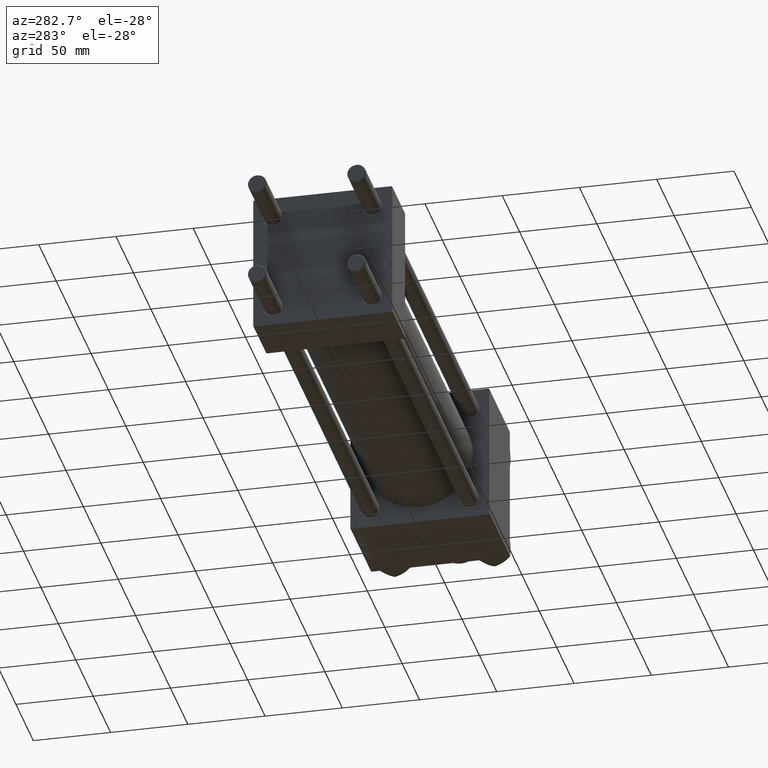
[diagram: clean part render]
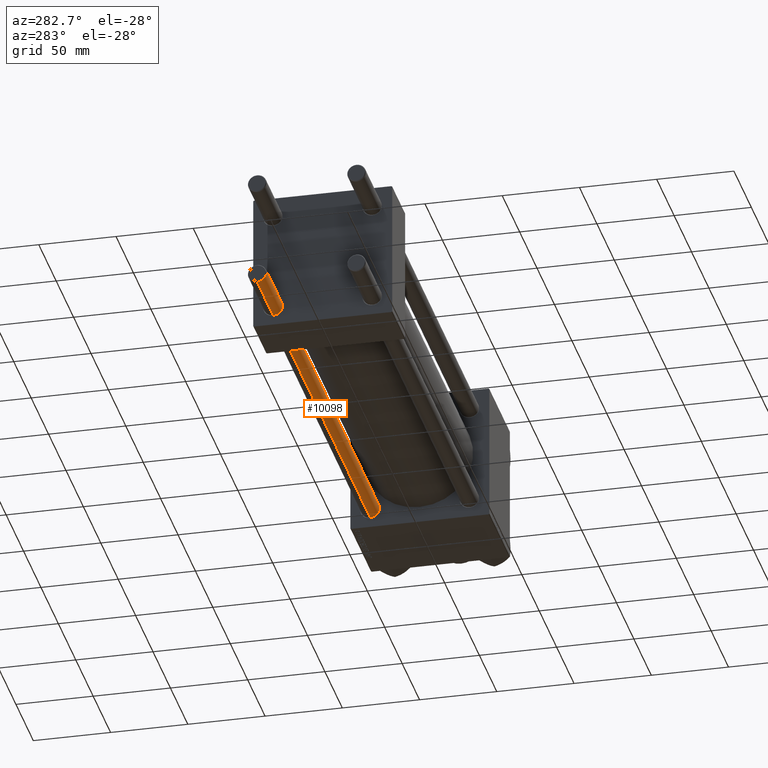
[diagram: same view with one face highlighted and labeled with its STEP entity id]
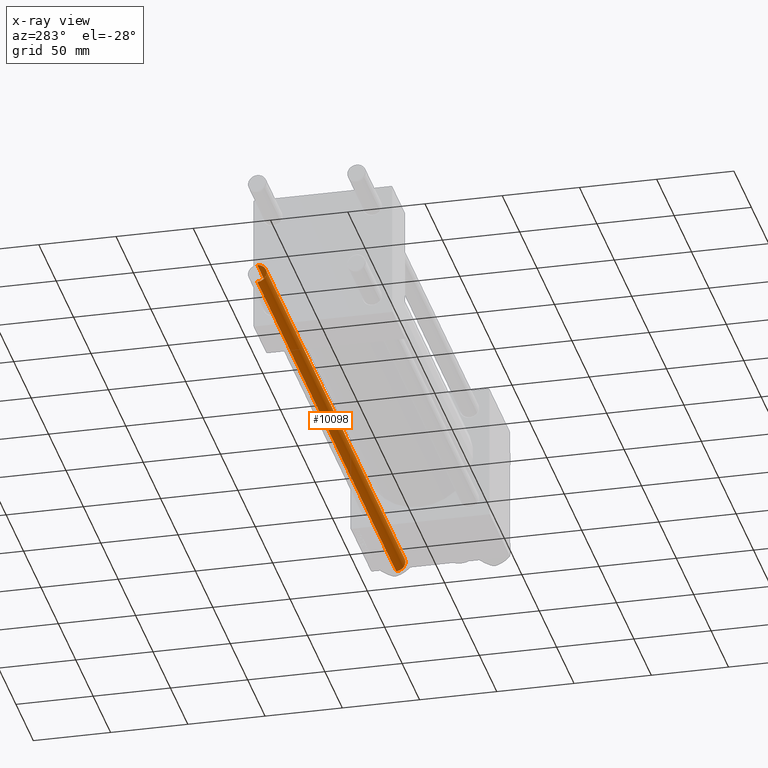
[diagram: x-ray of the same camera — body ghosted, the highlighted face saturated]
A machine part, auxiliary view. The second image highlights one B-rep face of the part: STEP entity #10098.
The next image is the same camera in x-ray: the body ghosted, the highlighted face saturated — about 0% of this face is hidden behind the body in this view.
In plain terms, the highlighted cylindrical surface (edge-blend (fillet) strip) has radius 6 mm, axis along (1, 0, -0).
Its self-contained STEP definition (entity closure, byte-faithful):
#448 = VERTEX_POINT ( 'NONE', #45012 ) ;
#512 = AXIS2_PLACEMENT_3D ( 'NONE', #50174, #46354, #8256 ) ;
#2069 = DIRECTION ( 'NONE',  ( 1.000000000000000000, 0.000000000000000000, 0.000000000000000000 ) ) ;
#2570 = ORIENTED_EDGE ( 'NONE', *, *, #16203, .T. ) ;
#2751 = AXIS2_PLACEMENT_3D ( 'NONE', #12993, #43968, #2069 ) ;
#3786 = CARTESIAN_POINT ( 'NONE',  ( -6.000000000000000888, 0.000000000000000000, 399.5000000000000000 ) ) ;
#8256 = DIRECTION ( 'NONE',  ( -1.000000000000000000, 0.000000000000000000, 0.000000000000000000 ) ) ;
#10098 = ADVANCED_FACE ( 'NONE', ( #42534 ), #11805, .T. ) ;
#10707 = CARTESIAN_POINT ( 'NONE',  ( -6.000000000000000888, 0.000000000000000000, 400.0000000000000000 ) ) ;
#11805 = CYLINDRICAL_SURFACE ( 'NONE', #512, 6.000000000000000888 ) ;
#12993 = CARTESIAN_POINT ( 'NONE',  ( 0.000000000000000000, 0.000000000000000000, 0.5000000000000004441 ) ) ;
#16203 = EDGE_CURVE ( 'NONE', #37288, #448, #33679, .T. ) ;
#18242 = CARTESIAN_POINT ( 'NONE',  ( 6.000000000000000888, 7.347880794884120722E-16, 399.5000000000000000 ) ) ;
#20446 = EDGE_CURVE ( 'NONE', #28883, #37288, #30234, .T. ) ;
#20483 = CIRCLE ( 'NONE', #32666, 6.000000000000000888 ) ;
#22616 = EDGE_LOOP ( 'NONE', ( #24108, #43980, #39637, #2570 ) ) ;
#24108 = ORIENTED_EDGE ( 'NONE', *, *, #39255, .F. ) ;
#25178 = CARTESIAN_POINT ( 'NONE',  ( 0.000000000000000000, 0.000000000000000000, 399.5000000000000000 ) ) ;
#26456 = CARTESIAN_POINT ( 'NONE',  ( 6.000000000000000888, 7.347880794884120722E-16, 400.0000000000000000 ) ) ;
#28883 = VERTEX_POINT ( 'NONE', #3786 ) ;
#29988 = DIRECTION ( 'NONE',  ( -0.000000000000000000, -0.000000000000000000, -1.000000000000000000 ) ) ;
#30234 = LINE ( 'NONE', #10707, #43366 ) ;
#32666 = AXIS2_PLACEMENT_3D ( 'NONE', #25178, #33812, #37864 ) ;
#33506 = VERTEX_POINT ( 'NONE', #18242 ) ;
#33679 = CIRCLE ( 'NONE', #2751, 6.000000000000000888 ) ;
#33812 = DIRECTION ( 'NONE',  ( 0.000000000000000000, 0.000000000000000000, -1.000000000000000000 ) ) ;
#36940 = CARTESIAN_POINT ( 'NONE',  ( -6.000000000000000888, 0.000000000000000000, 0.5000000000000004441 ) ) ;
#37288 = VERTEX_POINT ( 'NONE', #36940 ) ;
#37424 = VECTOR ( 'NONE', #42200, 1000.000000000000000 ) ;
#37864 = DIRECTION ( 'NONE',  ( 1.000000000000000000, 0.000000000000000000, 0.000000000000000000 ) ) ;
#39255 = EDGE_CURVE ( 'NONE', #33506, #448, #46018, .T. ) ;
#39637 = ORIENTED_EDGE ( 'NONE', *, *, #20446, .T. ) ;
#42200 = DIRECTION ( 'NONE',  ( -0.000000000000000000, -0.000000000000000000, -1.000000000000000000 ) ) ;
#42534 = FACE_OUTER_BOUND ( 'NONE', #22616, .T. ) ;
#42743 = EDGE_CURVE ( 'NONE', #33506, #28883, #20483, .T. ) ;
#43366 = VECTOR ( 'NONE', #29988, 1000.000000000000000 ) ;
#43968 = DIRECTION ( 'NONE',  ( -0.000000000000000000, -0.000000000000000000, 1.000000000000000000 ) ) ;
#43980 = ORIENTED_EDGE ( 'NONE', *, *, #42743, .T. ) ;
#45012 = CARTESIAN_POINT ( 'NONE',  ( 6.000000000000000888, 7.347880794884120722E-16, 0.5000000000000004441 ) ) ;
#46018 = LINE ( 'NONE', #26456, #37424 ) ;
#46354 = DIRECTION ( 'NONE',  ( -0.000000000000000000, -0.000000000000000000, -1.000000000000000000 ) ) ;
#50174 = CARTESIAN_POINT ( 'NONE',  ( 0.000000000000000000, 0.000000000000000000, 400.0000000000000000 ) ) ;